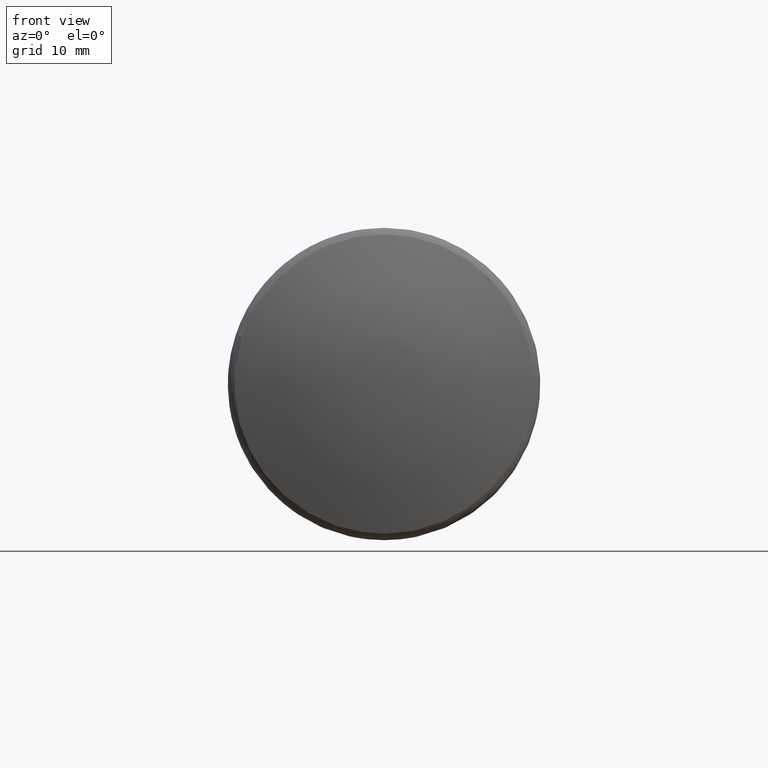
[diagram: clean part render]
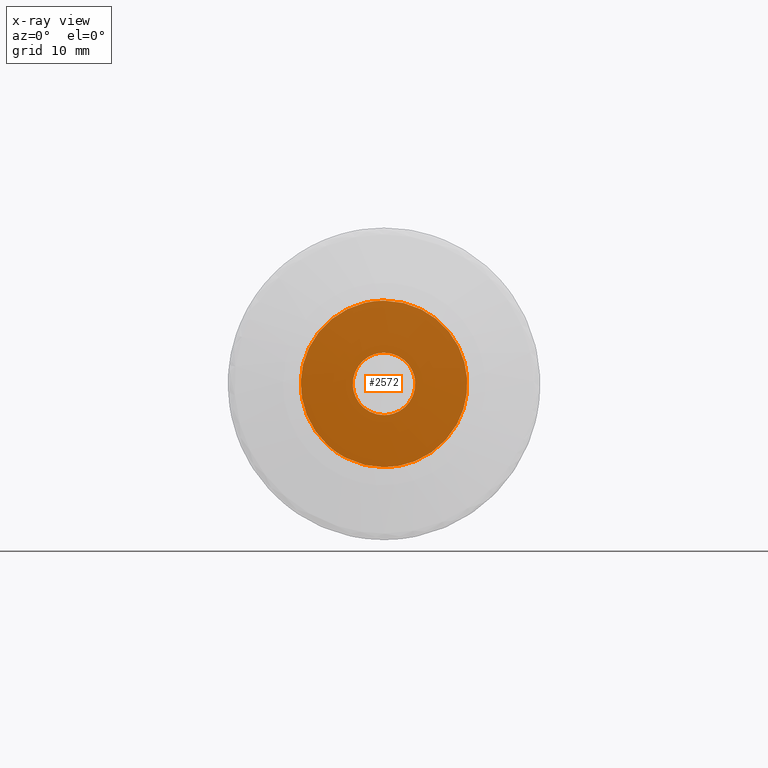
[diagram: x-ray — body ghosted, one internal face saturated and labeled with its STEP entity id]
A machine part, front view, then the same camera in x-ray: the body is ghosted and one INTERNAL B-rep face — a face not visible from any outside direction — is saturated and labeled: STEP entity #2572.
In plain terms, the highlighted face is a freeform B-spline surface patch.
Its self-contained STEP definition (entity closure, byte-faithful):
#1464=CARTESIAN_POINT('',(5.551115E-017,-2.990752001197810,0.235377287203528));
#1465=VERTEX_POINT('',#1464);
#1471=CARTESIAN_POINT('',(0.0,0.0,-3.0));
#1472=VERTEX_POINT('',#1471);
#1473=CARTESIAN_POINT('',(5.551115E-017,-2.990752001197810,0.235377287203528));
#1474=CARTESIAN_POINT('',(0.0,-3.0,0.117870321043094));
#1475=CARTESIAN_POINT('',(0.0,-3.0,0.0));
#1476=CARTESIAN_POINT('',(0.0,-3.0,-3.0));
#1477=CARTESIAN_POINT('',(0.0,0.0,-3.0));
#1485=(BOUNDED_CURVE()B_SPLINE_CURVE(2,(#1473,#1474,#1475,#1476,#1477),.UNSPECIFIED.,.F.,.U.)B_SPLINE_CURVE_WITH_KNOTS((3,2,3),(0.736331300630475,0.750000000000000,1.0),.UNSPECIFIED.)CURVE()GEOMETRIC_REPRESENTATION_ITEM()RATIONAL_B_SPLINE_CURVE((0.969723356167032,0.983986122578666,1.0,0.707106781186548,1.0))REPRESENTATION_ITEM(''));
#1486=EDGE_CURVE('',#1465,#1472,#1485,.T.);
#1488=CARTESIAN_POINT('',(5.551115E-017,2.990752001197810,-0.235377287203528));
#1489=VERTEX_POINT('',#1488);
#1490=CARTESIAN_POINT('',(0.0,0.0,-3.0));
#1491=CARTESIAN_POINT('',(0.0,2.773171474937433,-3.000000000000001));
#1492=CARTESIAN_POINT('',(5.551115E-017,2.990752001197810,-0.235377287203528));
#1500=(BOUNDED_CURVE()B_SPLINE_CURVE(2,(#1490,#1491,#1492),.UNSPECIFIED.,.F.,.U.)B_SPLINE_CURVE_WITH_KNOTS((3,3),(0.0,0.236331300630475),.UNSPECIFIED.)CURVE()GEOMETRIC_REPRESENTATION_ITEM()RATIONAL_B_SPLINE_CURVE((1.0,0.723120658607882,0.969723356167033))REPRESENTATION_ITEM(''));
#1501=EDGE_CURVE('',#1472,#1489,#1500,.T.);
#1531=CARTESIAN_POINT('',(0.0,0.0,3.0));
#1532=VERTEX_POINT('',#1531);
#1533=CARTESIAN_POINT('',(5.551115E-017,2.990752001197810,-0.235377287203528));
#1534=CARTESIAN_POINT('',(0.0,3.0,-0.117870321043094));
#1535=CARTESIAN_POINT('',(0.0,3.0,0.0));
#1536=CARTESIAN_POINT('',(0.0,3.0,3.0));
#1537=CARTESIAN_POINT('',(0.0,0.0,3.0));
#1545=(BOUNDED_CURVE()B_SPLINE_CURVE(2,(#1533,#1534,#1535,#1536,#1537),.UNSPECIFIED.,.F.,.U.)B_SPLINE_CURVE_WITH_KNOTS((3,2,3),(0.236331300630475,0.250000000000000,0.500000000000000),.UNSPECIFIED.)CURVE()GEOMETRIC_REPRESENTATION_ITEM()RATIONAL_B_SPLINE_CURVE((0.969723356167032,0.983986122578666,1.0,0.707106781186548,1.0))REPRESENTATION_ITEM(''));
#1546=EDGE_CURVE('',#1489,#1532,#1545,.T.);
#1548=CARTESIAN_POINT('',(0.0,0.0,3.0));
#1549=CARTESIAN_POINT('',(0.0,-2.773171474937423,3.000000000000000));
#1550=CARTESIAN_POINT('',(5.551115E-017,-2.990752001197810,0.235377287203528));
#1558=(BOUNDED_CURVE()B_SPLINE_CURVE(2,(#1548,#1549,#1550),.UNSPECIFIED.,.F.,.U.)B_SPLINE_CURVE_WITH_KNOTS((3,3),(0.500000000000000,0.736331300630475),.UNSPECIFIED.)CURVE()GEOMETRIC_REPRESENTATION_ITEM()RATIONAL_B_SPLINE_CURVE((1.0,0.723120658607882,0.969723356167032))REPRESENTATION_ITEM(''));
#1559=EDGE_CURVE('',#1532,#1465,#1558,.T.);
#1866=CARTESIAN_POINT('',(0.0,5.404720718897659,-5.898219557689992));
#1867=VERTEX_POINT('',#1866);
#1873=CARTESIAN_POINT('',(0.0,0.0,-8.0));
#1874=VERTEX_POINT('',#1873);
#1875=CARTESIAN_POINT('',(0.0,0.0,-8.0));
#1876=CARTESIAN_POINT('',(0.0,3.111029119356358,-8.0));
#1877=CARTESIAN_POINT('',(0.0,5.404720718897659,-5.898219557689993));
#1885=(BOUNDED_CURVE()B_SPLINE_CURVE(2,(#1875,#1876,#1877),.UNSPECIFIED.,.F.,.U.)B_SPLINE_CURVE_WITH_KNOTS((3,3),(0.500000000000000,0.618415184973632),.UNSPECIFIED.)CURVE()GEOMETRIC_REPRESENTATION_ITEM()RATIONAL_B_SPLINE_CURVE((1.0,0.861267981266730,0.853959783813985))REPRESENTATION_ITEM(''));
#1886=EDGE_CURVE('',#1874,#1867,#1885,.T.);
#1888=CARTESIAN_POINT('',(-1.167441E-016,-6.999575342346139,-3.873750769829453));
#1889=VERTEX_POINT('',#1888);
#1890=CARTESIAN_POINT('',(-1.167441E-016,-6.999575342346139,-3.873750769829454));
#1891=CARTESIAN_POINT('',(0.0,-4.715999503802349,-8.0));
#1892=CARTESIAN_POINT('',(0.0,0.0,-8.0));
#1900=(BOUNDED_CURVE()B_SPLINE_CURVE(2,(#1890,#1891,#1892),.UNSPECIFIED.,.F.,.U.)B_SPLINE_CURVE_WITH_KNOTS((3,3),(0.332484133138871,0.500000000000000),.UNSPECIFIED.)CURVE()GEOMETRIC_REPRESENTATION_ITEM()RATIONAL_B_SPLINE_CURVE((0.870495261645505,0.803742954210873,1.0))REPRESENTATION_ITEM(''));
#1901=EDGE_CURVE('',#1889,#1874,#1900,.T.);
#1951=CARTESIAN_POINT('',(0.0,0.0,8.0));
#1952=VERTEX_POINT('',#1951);
#1953=CARTESIAN_POINT('',(0.0,0.0,8.0));
#1954=CARTESIAN_POINT('',(0.0,-8.0,8.0));
#1955=CARTESIAN_POINT('',(0.0,-8.0,0.0));
#1956=CARTESIAN_POINT('',(0.0,-8.0,-2.066058901758005));
#1957=CARTESIAN_POINT('',(-1.167441E-016,-6.999575342346139,-3.873750769829454));
#1965=(BOUNDED_CURVE()B_SPLINE_CURVE(2,(#1953,#1954,#1955,#1956,#1957),.UNSPECIFIED.,.F.,.U.)B_SPLINE_CURVE_WITH_KNOTS((3,2,3),(0.0,0.250000000000000,0.332484133138871),.UNSPECIFIED.)CURVE()GEOMETRIC_REPRESENTATION_ITEM()RATIONAL_B_SPLINE_CURVE((1.0,0.707106781186548,1.0,0.903363826975675,0.870495261645505))REPRESENTATION_ITEM(''));
#1966=EDGE_CURVE('',#1952,#1889,#1965,.T.);
#1968=CARTESIAN_POINT('',(0.0,5.404720718897659,-5.898219557689993));
#1969=CARTESIAN_POINT('',(0.0,8.0,-3.520085009678637));
#1970=CARTESIAN_POINT('',(0.0,8.0,0.0));
#1971=CARTESIAN_POINT('',(0.0,8.0,8.0));
#1972=CARTESIAN_POINT('',(0.0,0.0,8.0));
#1980=(BOUNDED_CURVE()B_SPLINE_CURVE(2,(#1968,#1969,#1970,#1971,#1972),.UNSPECIFIED.,.F.,.U.)B_SPLINE_CURVE_WITH_KNOTS((3,2,3),(0.618415184973632,0.750000000000000,1.0),.UNSPECIFIED.)CURVE()GEOMETRIC_REPRESENTATION_ITEM()RATIONAL_B_SPLINE_CURVE((0.853959783813985,0.845838799919817,1.0,0.707106781186548,1.0))REPRESENTATION_ITEM(''));
#1981=EDGE_CURVE('',#1867,#1952,#1980,.T.);
#2555=CARTESIAN_POINT('',(0.0,-8.797177511837445,8.799199968988896));
#2556=CARTESIAN_POINT('',(0.0,8.795559174206220,8.799199968988896));
#2557=CARTESIAN_POINT('',(0.0,-8.797177511837445,-8.799200398142338));
#2558=CARTESIAN_POINT('',(0.0,8.795559174206220,-8.799200398142338));
#2559=B_SPLINE_SURFACE_WITH_KNOTS('',1,1,((#2555,#2557),(#2556,#2558)),.UNSPECIFIED.,.F.,.F.,.U.,(2,2),(2,2),(0.0,17.592736686043668),(0.0,17.598400367131230),.UNSPECIFIED.);
#2560=ORIENTED_EDGE('',*,*,#1966,.T.);
#2561=ORIENTED_EDGE('',*,*,#1901,.T.);
#2562=ORIENTED_EDGE('',*,*,#1886,.T.);
#2563=ORIENTED_EDGE('',*,*,#1981,.T.);
#2564=EDGE_LOOP('',(#2560,#2561,#2562,#2563));
#2565=FACE_OUTER_BOUND('',#2564,.T.);
#2566=ORIENTED_EDGE('',*,*,#1559,.F.);
#2567=ORIENTED_EDGE('',*,*,#1546,.F.);
#2568=ORIENTED_EDGE('',*,*,#1501,.F.);
#2569=ORIENTED_EDGE('',*,*,#1486,.F.);
#2570=EDGE_LOOP('',(#2566,#2567,#2568,#2569));
#2571=FACE_BOUND('',#2570,.T.);
#2572=ADVANCED_FACE('',(#2565,#2571),#2559,.F.);